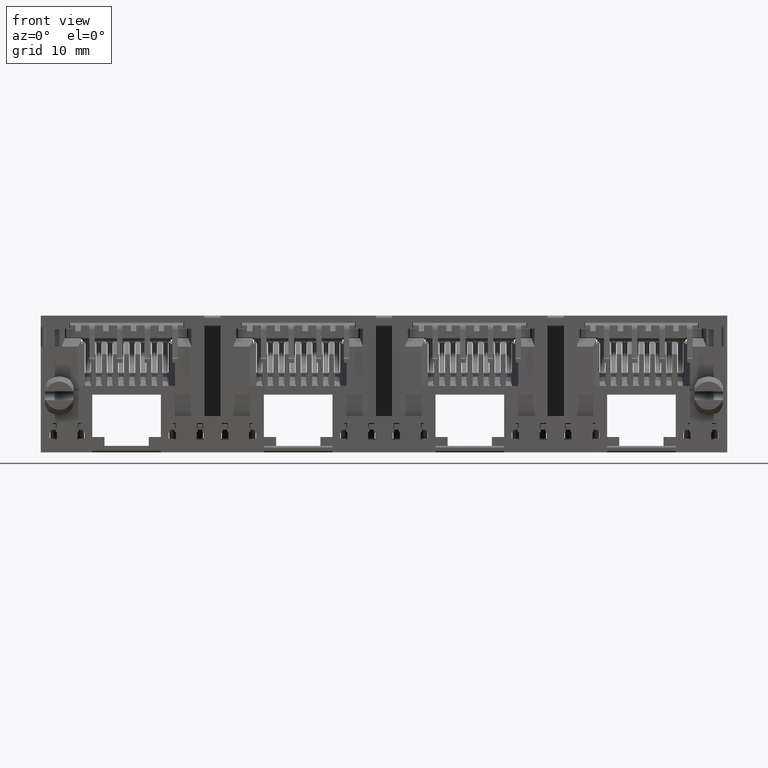
[diagram: clean part render]
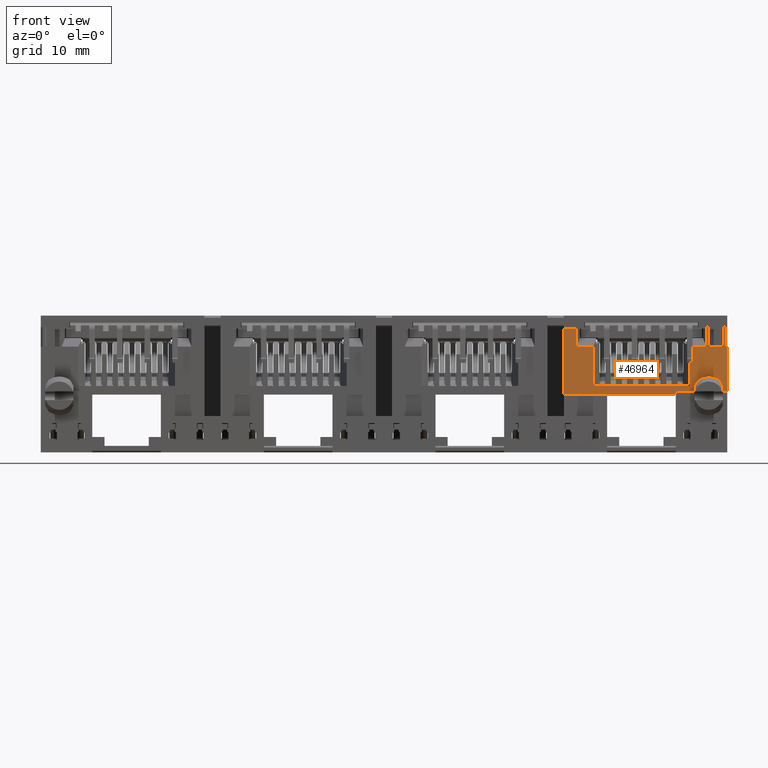
[diagram: same view with one face highlighted and labeled with its STEP entity id]
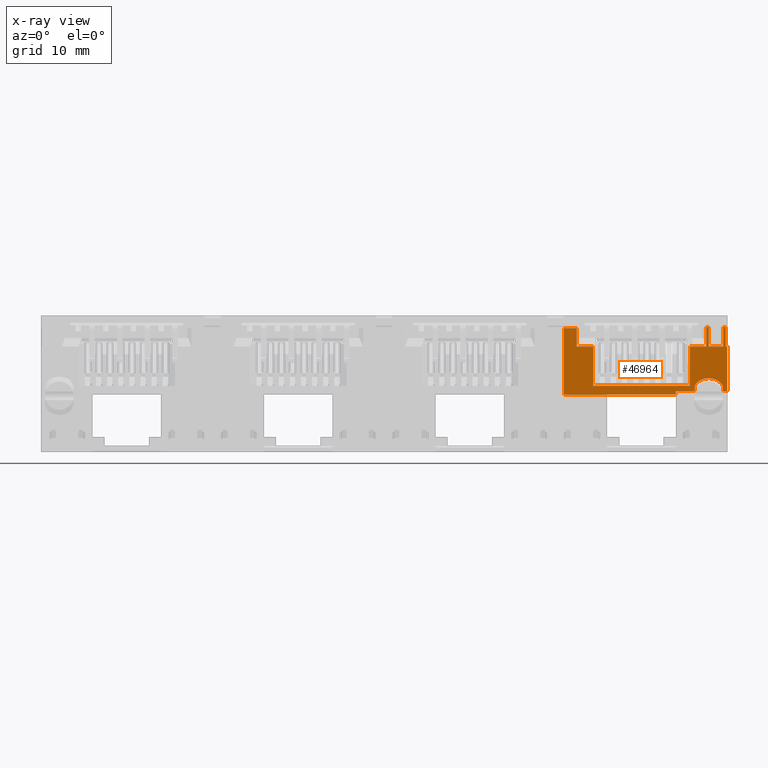
[diagram: x-ray of the same camera — body ghosted, the highlighted face saturated]
A machine part, front view. The second image highlights one B-rep face of the part: STEP entity #46964.
The next image is the same camera in x-ray: the body ghosted, the highlighted face saturated — about 0% of this face is hidden behind the body in this view.
In plain terms, the highlighted planar face has unit normal (0, 1, 0).
Its self-contained STEP definition (entity closure, byte-faithful):
#419 = VERTEX_POINT ( 'NONE', #39764 ) ;
#1283 = ORIENTED_EDGE ( 'NONE', *, *, #9608, .F. ) ;
#1754 = CARTESIAN_POINT ( 'NONE',  ( 31.05079481963474900, -6.500000000000001800, -0.06477412760717109200 ) ) ;
#2093 = B_SPLINE_CURVE_WITH_KNOTS ( 'NONE', 3,
 ( #70383, #32697, #38119, #48844 ),
 .UNSPECIFIED., .F., .F.,
 ( 4, 4 ),
 ( 0.0000000000000000000, 1.000000000000000000 ),
 .UNSPECIFIED. ) ;
#2249 = EDGE_CURVE ( 'NONE', #61274, #5122, #36587, .T. ) ;
#2575 = CARTESIAN_POINT ( 'NONE',  ( 31.50000000000000000, -6.500000000000000900, -0.6500000000000003600 ) ) ;
#3038 = CARTESIAN_POINT ( 'NONE',  ( 31.28333333333333100, -6.500000000000000900, 5.250000000000000000 ) ) ;
#3507 = CARTESIAN_POINT ( 'NONE',  ( 31.15000000000000200, -6.500000000000000900, 5.250000000000000900 ) ) ;
#3775 = CARTESIAN_POINT ( 'NONE',  ( 19.18000000000000000, -6.500000000000246000, 3.450000000000215100 ) ) ;
#4224 = ORIENTED_EDGE ( 'NONE', *, *, #61910, .F. ) ;
#4317 = EDGE_CURVE ( 'NONE', #45233, #20883, #52501, .T. ) ;
#4391 = ORIENTED_EDGE ( 'NONE', *, *, #22048, .F. ) ;
#4836 = CARTESIAN_POINT ( 'NONE',  ( 23.34999999999999800, -6.500000000000000900, -0.9500000000000000700 ) ) ;
#5113 = CARTESIAN_POINT ( 'NONE',  ( 28.49999999999999600, -6.500000000000000900, -0.3166666666663324200 ) ) ;
#5122 = VERTEX_POINT ( 'NONE', #67496 ) ;
#5339 = CARTESIAN_POINT ( 'NONE',  ( 28.49999999999999600, -6.500000000000000900, -0.4833333333331659200 ) ) ;
#5540 = CARTESIAN_POINT ( 'NONE',  ( 26.77500000000000200, -6.500000000000000900, -0.8500000000000002000 ) ) ;
#5964 = VERTEX_POINT ( 'NONE', #11994 ) ;
#6111 = ORIENTED_EDGE ( 'NONE', *, *, #22587, .F. ) ;
#6421 = ORIENTED_EDGE ( 'NONE', *, *, #24636, .F. ) ;
#6668 = VERTEX_POINT ( 'NONE', #37493 ) ;
#6730 = B_SPLINE_CURVE_WITH_KNOTS ( 'NONE', 3,
 ( #12764, #40261, #7808, #45730 ),
 .UNSPECIFIED., .F., .F.,
 ( 4, 4 ),
 ( 0.0000000000000000000, 1.000000000000000000 ),
 .UNSPECIFIED. ) ;
#7363 = B_SPLINE_CURVE_WITH_KNOTS ( 'NONE', 3,
 ( #30772, #25537, #9187, #3775 ),
 .UNSPECIFIED., .F., .F.,
 ( 4, 4 ),
 ( 0.0000000000000000000, 1.000000000000000000 ),
 .UNSPECIFIED. ) ;
#7478 = CARTESIAN_POINT ( 'NONE',  ( 31.35000000000000100, -6.500000000000000000, 3.449999999999999700 ) ) ;
#7680 = CARTESIAN_POINT ( 'NONE',  ( 26.77500000000000200, -6.499999999999999100, -0.9499999999999998400 ) ) ;
#7808 = CARTESIAN_POINT ( 'NONE',  ( 28.52460259018153400, -6.500000000000000900, -0.1073870638027514100 ) ) ;
#7974 = ORIENTED_EDGE ( 'NONE', *, *, #15056, .T. ) ;
#8122 = CARTESIAN_POINT ( 'NONE',  ( 17.67500000000000100, -6.500000000000000900, 5.119999999999999200 ) ) ;
#8324 = CARTESIAN_POINT ( 'NONE',  ( 19.51420419375133600, -6.500000245400430600, -0.1499999598809001200 ) ) ;
#8636 = CARTESIAN_POINT ( 'NONE',  ( 29.80000000000013900, -6.500000000000000900, 0.5499999999999719600 ) ) ;
#8778 = CARTESIAN_POINT ( 'NONE',  ( 31.14999999999801300, -6.500000000001988600, 4.649999999999999500 ) ) ;
#8841 = CARTESIAN_POINT ( 'NONE',  ( 30.26555173776925000, -6.500000000000001800, 0.4983793825669424700 ) ) ;
#8879 = CARTESIAN_POINT ( 'NONE',  ( 16.50000000000000000, -6.500000000000000900, 5.119999999999999200 ) ) ;
#8986 = CARTESIAN_POINT ( 'NONE',  ( 29.33444826223069400, -6.500000000000001800, 0.4983793825669293700 ) ) ;
#9187 = CARTESIAN_POINT ( 'NONE',  ( 18.67833333333333100, -6.500000000000246900, 3.450000000000214200 ) ) ;
#9218 = CARTESIAN_POINT ( 'NONE',  ( 28.49999999999999600, -6.500000000000000900, -0.6500000000000001300 ) ) ;
#9544 = VERTEX_POINT ( 'NONE', #34579 ) ;
#9608 = EDGE_CURVE ( 'NONE', #5122, #9544, #6730, .T. ) ;
#9613 = CARTESIAN_POINT ( 'NONE',  ( 16.20000000000000300, -6.500000000000000900, -1.074000000000000100 ) ) ;
#9868 = CARTESIAN_POINT ( 'NONE',  ( 31.50000000000000000, -6.500000000000000900, -0.6500000000000003600 ) ) ;
#10017 = CARTESIAN_POINT ( 'NONE',  ( 29.57499999999999900, -6.500000000000000900, 5.163333333333332200 ) ) ;
#10426 = EDGE_CURVE ( 'NONE', #30458, #29005, #39678, .T. ) ;
#10575 = ORIENTED_EDGE ( 'NONE', *, *, #10426, .T. ) ;
#10597 = CARTESIAN_POINT ( 'NONE',  ( 28.07000000000103100, -6.499999999999378300, 1.050000002014333600 ) ) ;
#10626 = CARTESIAN_POINT ( 'NONE',  ( 17.67500000000000100, -6.500000000000246900, 3.450000000000216000 ) ) ;
#10804 = CARTESIAN_POINT ( 'NONE',  ( 16.50000000000000000, -6.500000000000000900, 5.119999999999999200 ) ) ;
#10995 = CARTESIAN_POINT ( 'NONE',  ( 31.44999999999999900, -6.500000000000000900, 3.449999999999999700 ) ) ;
#11218 = VERTEX_POINT ( 'NONE', #24218 ) ;
#11230 = CARTESIAN_POINT ( 'NONE',  ( 31.40000000000000600, -6.500000000000000900, 3.449999999999999700 ) ) ;
#11503 = CARTESIAN_POINT ( 'NONE',  ( 29.80000000000000100, -6.500000000000000900, 4.049999999999999800 ) ) ;
#11970 = CARTESIAN_POINT ( 'NONE',  ( 29.79999999999999700, -6.500000000000000900, 3.449999999999999300 ) ) ;
#11994 = CARTESIAN_POINT ( 'NONE',  ( 28.06999999999999700, -6.500000000000000900, 3.449999999999999300 ) ) ;
#12109 = CARTESIAN_POINT ( 'NONE',  ( 16.89166666666666900, -6.500000000000000900, 5.119999999999999200 ) ) ;
#12134 = ORIENTED_EDGE ( 'NONE', *, *, #18839, .F. ) ;
#12764 = CARTESIAN_POINT ( 'NONE',  ( 28.57380777055059400, -6.500000000000000900, -0.02216119141224611200 ) ) ;
#13102 = ORIENTED_EDGE ( 'NONE', *, *, #33493, .F. ) ;
#13198 = CARTESIAN_POINT ( 'NONE',  ( 29.57499999999999900, -6.500000000000000900, 3.449999999999999300 ) ) ;
#13436 = EDGE_CURVE ( 'NONE', #57082, #11218, #18339, .T. ) ;
#14308 = CARTESIAN_POINT ( 'NONE',  ( 16.50000000000000000, -6.500000000000000900, 1.073333333333333300 ) ) ;
#14391 = ORIENTED_EDGE ( 'NONE', *, *, #32857, .F. ) ;
#14432 = VERTEX_POINT ( 'NONE', #66376 ) ;
#14434 = CARTESIAN_POINT ( 'NONE',  ( 31.35000000000000100, -6.500000000000000000, 3.449999999999999700 ) ) ;
#14595 = EDGE_LOOP ( 'NONE', ( #23241, #40059, #20599, #43002, #7974, #4391, #6111, #1283, #44000, #56017, #30679, #6421, #26405, #10575, #24874, #57555, #13102, #37024, #18992, #12134, #56809, #14391, #44181, #55383, #42295, #4224, #66008, #38758 ) ) ;
#14666 = CARTESIAN_POINT ( 'NONE',  ( 26.77499999999999900, -6.500000000000000900, -0.6500000000000001300 ) ) ;
#15056 = EDGE_CURVE ( 'NONE', #45233, #57091, #63949, .T. ) ;
#15985 = CARTESIAN_POINT ( 'NONE',  ( 28.49999999999999600, -6.500000000000000900, -0.6500000000000001300 ) ) ;
#16304 = EDGE_CURVE ( 'NONE', #20883, #63392, #61285, .T. ) ;
#16535 = CARTESIAN_POINT ( 'NONE',  ( 17.67500000000090000, -6.500000000000386400, 4.563333333333331700 ) ) ;
#16606 = CARTESIAN_POINT ( 'NONE',  ( 30.70000000000000300, -6.500000000000000900, 3.449999999999999700 ) ) ;
#16617 = CARTESIAN_POINT ( 'NONE',  ( 19.92500000000000100, -6.500000000000000900, -0.9500000000000000700 ) ) ;
#17501 = CARTESIAN_POINT ( 'NONE',  ( 28.57166666666666500, -6.500000000000246900, 3.450000000000214700 ) ) ;
#17560 = CARTESIAN_POINT ( 'NONE',  ( 17.28333333333333100, -6.500000000000000900, 5.119999999999999200 ) ) ;
#17842 = CARTESIAN_POINT ( 'NONE',  ( 31.07539740981844300, -6.500000000000001800, -0.1073870638027169500 ) ) ;
#18187 = B_SPLINE_CURVE_WITH_KNOTS ( 'NONE', 3,
 ( #65116, #10597, #59457, #54722 ),
 .UNSPECIFIED., .F., .F.,
 ( 4, 4 ),
 ( 0.0000000000000000000, 1.000000000000000000 ),
 .UNSPECIFIED. ) ;
#18339 = B_SPLINE_CURVE_WITH_KNOTS ( 'NONE', 3,
 ( #56894, #52146, #24384, #62307 ),
 .UNSPECIFIED., .F., .F.,
 ( 4, 4 ),
 ( 0.0000000000000000000, 1.000000000000000000 ),
 .UNSPECIFIED. ) ;
#18518 = CARTESIAN_POINT ( 'NONE',  ( 24.85753752708000500, -6.499998047878629700, -0.1500129259178237800 ) ) ;
#18729 = CARTESIAN_POINT ( 'NONE',  ( 26.77499999999999900, -6.500000000000000900, -0.6500000000000001300 ) ) ;
#18839 = EDGE_CURVE ( 'NONE', #11218, #14432, #23558, .T. ) ;
#18891 = CARTESIAN_POINT ( 'NONE',  ( 29.07333333333333400, -6.500000000000246900, 3.450000000000214700 ) ) ;
#18992 = ORIENTED_EDGE ( 'NONE', *, *, #40862, .F. ) ;
#19547 = EDGE_CURVE ( 'NONE', #62082, #59518, #35661, .T. ) ;
#20115 = CARTESIAN_POINT ( 'NONE',  ( 31.09999999999999800, -6.500000000000000900, -0.1499999999994998100 ) ) ;
#20435 = CARTESIAN_POINT ( 'NONE',  ( 31.50000000000000000, -6.500000000000000900, 2.083333333333333500 ) ) ;
#20515 = DIRECTION ( 'NONE',  ( 0.0000000000000000000, 1.000000000000000000, 0.0000000000000000000 ) ) ;
#20599 = ORIENTED_EDGE ( 'NONE', *, *, #16304, .F. ) ;
#20705 = CARTESIAN_POINT ( 'NONE',  ( 30.68756163978670100, -6.500000000000001800, 0.3014627144237085900 ) ) ;
#20883 = VERTEX_POINT ( 'NONE', #46407 ) ;
#20926 = EDGE_CURVE ( 'NONE', #30458, #43813, #42181, .T. ) ;
#20934 = CARTESIAN_POINT ( 'NONE',  ( 31.15000000000000600, -6.500000000000000900, 3.449999999999999300 ) ) ;
#21962 = CARTESIAN_POINT ( 'NONE',  ( 29.79999999999999700, -6.500000000000000900, 5.250000000000000900 ) ) ;
#22048 = EDGE_CURVE ( 'NONE', #62718, #57091, #49120, .T. ) ;
#22552 = VERTEX_POINT ( 'NONE', #63897 ) ;
#22587 = EDGE_CURVE ( 'NONE', #9544, #62718, #32161, .T. ) ;
#22628 = VERTEX_POINT ( 'NONE', #64361 ) ;
#23080 = EDGE_CURVE ( 'NONE', #27309, #40654, #7363, .T. ) ;
#23241 = ORIENTED_EDGE ( 'NONE', *, *, #30267, .F. ) ;
#23558 = B_SPLINE_CURVE_WITH_KNOTS ( 'NONE', 3,
 ( #21962, #27853, #11503, #11970 ),
 .UNSPECIFIED., .F., .F.,
 ( 4, 4 ),
 ( 0.0000000000000000000, 1.000000000000000000 ),
 .UNSPECIFIED. ) ;
#24218 = CARTESIAN_POINT ( 'NONE',  ( 29.79999999999999700, -6.500000000000000900, 5.250000000000000900 ) ) ;
#24384 = CARTESIAN_POINT ( 'NONE',  ( 29.72500000000000100, -6.500000000000000900, 5.250000000000000000 ) ) ;
#24636 = EDGE_CURVE ( 'NONE', #43813, #59839, #33848, .T. ) ;
#24666 = B_SPLINE_CURVE_WITH_KNOTS ( 'NONE', 3,
 ( #25354, #46487, #8778, #62828 ),
 .UNSPECIFIED., .F., .F.,
 ( 4, 4 ),
 ( 0.0000000000000000000, 1.000000000000000000 ),
 .UNSPECIFIED. ) ;
#24754 = EDGE_CURVE ( 'NONE', #419, #5964, #18187, .T. ) ;
#24874 = ORIENTED_EDGE ( 'NONE', *, *, #29387, .F. ) ;
#24936 = B_SPLINE_CURVE_WITH_KNOTS ( 'NONE', 3,
 ( #34771, #17501, #18891, #13198 ),
 .UNSPECIFIED., .F., .F.,
 ( 4, 4 ),
 ( 0.0000000000000000000, 1.000000000000000000 ),
 .UNSPECIFIED. ) ;
#25326 = CARTESIAN_POINT ( 'NONE',  ( 28.91243836021319100, -6.500000000000001800, 0.3014627144236470300 ) ) ;
#25354 = CARTESIAN_POINT ( 'NONE',  ( 31.15000000000000600, -6.500000000000000900, 3.449999999999999300 ) ) ;
#25537 = CARTESIAN_POINT ( 'NONE',  ( 18.17666666666666200, -6.500000000000246900, 3.450000000000214200 ) ) ;
#25570 = EDGE_CURVE ( 'NONE', #53103, #22552, #24666, .T. ) ;
#25660 = CARTESIAN_POINT ( 'NONE',  ( 30.03284572767898200, -6.500000000000000900, 0.5500000000000001600 ) ) ;
#25914 = B_SPLINE_CURVE_WITH_KNOTS ( 'NONE', 3,
 ( #61903, #44875, #62863, #46758 ),
 .UNSPECIFIED., .F., .F.,
 ( 4, 4 ),
 ( 0.0000000000000000000, 1.000000000000000000 ),
 .UNSPECIFIED. ) ;
#26405 = ORIENTED_EDGE ( 'NONE', *, *, #20926, .F. ) ;
#27309 = VERTEX_POINT ( 'NONE', #64467 ) ;
#27853 = CARTESIAN_POINT ( 'NONE',  ( 29.80000000000000100, -6.500000000000000900, 4.650000000000000400 ) ) ;
#28733 = CARTESIAN_POINT ( 'NONE',  ( 31.09999999999999800, -6.500000000000000900, -0.1499999999994998100 ) ) ;
#29005 = VERTEX_POINT ( 'NONE', #29539 ) ;
#29387 = EDGE_CURVE ( 'NONE', #59518, #29005, #32876, .T. ) ;
#29402 = CARTESIAN_POINT ( 'NONE',  ( 22.14333349813566800, -6.500000369471119500, -0.1499992278241341600 ) ) ;
#29539 = CARTESIAN_POINT ( 'NONE',  ( 31.50000000000000000, -6.500000000000000900, 3.449999999999999700 ) ) ;
#29886 = CARTESIAN_POINT ( 'NONE',  ( 27.48666666667337900, -6.499995620450055100, -0.1500272484730196300 ) ) ;
#30106 = CARTESIAN_POINT ( 'NONE',  ( 31.34999999999999400, -6.500000000000000900, 5.250000000000000900 ) ) ;
#30267 = EDGE_CURVE ( 'NONE', #60223, #27309, #49353, .T. ) ;
#30458 = VERTEX_POINT ( 'NONE', #2575 ) ;
#30679 = ORIENTED_EDGE ( 'NONE', *, *, #46255, .F. ) ;
#30772 = CARTESIAN_POINT ( 'NONE',  ( 17.67500000000000100, -6.500000000000246900, 3.450000000000216000 ) ) ;
#30856 = CARTESIAN_POINT ( 'NONE',  ( 31.50000000000000000, -6.500000000000000900, 0.7166666666666662300 ) ) ;
#31040 = CARTESIAN_POINT ( 'NONE',  ( 27.34999999999999800, -6.500000000000000900, -0.6500000000000001300 ) ) ;
#31141 = B_SPLINE_CURVE_WITH_KNOTS ( 'NONE', 3,
 ( #28733, #17842, #1754, #51279 ),
 .UNSPECIFIED., .F., .F.,
 ( 4, 4 ),
 ( 0.0000000000000000000, 1.000000000000000000 ),
 .UNSPECIFIED. ) ;
#31391 = CARTESIAN_POINT ( 'NONE',  ( 31.09999999999999800, -6.500000000000000900, -0.1499999999994998100 ) ) ;
#31445 = CARTESIAN_POINT ( 'NONE',  ( 31.36666666666666700, -6.500000000000000900, -0.6500000000000001300 ) ) ;
#31596 = CARTESIAN_POINT ( 'NONE',  ( 30.87661230737299100, -6.500000000000000000, 0.1562848223000073400 ) ) ;
#32161 = B_SPLINE_CURVE_WITH_KNOTS ( 'NONE', 3,
 ( #48970, #5113, #5339, #43496 ),
 .UNSPECIFIED., .F., .F.,
 ( 4, 4 ),
 ( 0.0000000000000000000, 1.000000000000000000 ),
 .UNSPECIFIED. ) ;
#32697 = CARTESIAN_POINT ( 'NONE',  ( 29.57499999999910400, -6.500000000000384600, 4.006666666666665000 ) ) ;
#32857 = EDGE_CURVE ( 'NONE', #67060, #57082, #44588, .T. ) ;
#32876 = B_SPLINE_CURVE_WITH_KNOTS ( 'NONE', 3,
 ( #7478, #11230, #10995, #60553 ),
 .UNSPECIFIED., .F., .F.,
 ( 4, 4 ),
 ( 0.0000000000000000000, 1.000000000000000000 ),
 .UNSPECIFIED. ) ;
#33493 = EDGE_CURVE ( 'NONE', #22552, #62082, #66662, .T. ) ;
#33848 = B_SPLINE_CURVE_WITH_KNOTS ( 'NONE', 3,
 ( #42389, #53554, #64416, #20115 ),
 .UNSPECIFIED., .F., .F.,
 ( 4, 4 ),
 ( 0.0000000000000000000, 1.000000000000000000 ),
 .UNSPECIFIED. ) ;
#34579 = CARTESIAN_POINT ( 'NONE',  ( 28.49999999999999600, -6.500000000000000900, -0.1499999999994998100 ) ) ;
#34771 = CARTESIAN_POINT ( 'NONE',  ( 28.06999999999999700, -6.500000000000000900, 3.449999999999999300 ) ) ;
#34867 = CARTESIAN_POINT ( 'NONE',  ( 28.06999999999999700, -6.500000000000000900, -0.1499999969784994200 ) ) ;
#35661 = B_SPLINE_CURVE_WITH_KNOTS ( 'NONE', 3,
 ( #30106, #46728, #46256, #14434 ),
 .UNSPECIFIED., .F., .F.,
 ( 4, 4 ),
 ( 0.0000000000000000000, 1.000000000000000000 ),
 .UNSPECIFIED. ) ;
#36077 = B_SPLINE_CURVE_WITH_KNOTS ( 'NONE', 3,
 ( #62125, #8324, #29402, #18518, #29886, #41018, #34867 ),
 .UNSPECIFIED., .F., .F.,
 ( 4, 1, 1, 1, 4 ),
 ( 0.0000000000000000000, 0.1127798179132812600, 0.8872202376978167700, 0.9159293685953483500, 1.000000000000000000 ),
 .UNSPECIFIED. ) ;
#36587 = B_SPLINE_CURVE_WITH_KNOTS ( 'NONE', 3,
 ( #52162, #57613, #8986, #25326, #52393, #58098 ),
 .UNSPECIFIED., .F., .F.,
 ( 4, 2, 4 ),
 ( 0.0000000000000000000, 0.5000000000000000000, 1.000000000000000000 ),
 .UNSPECIFIED. ) ;
#37024 = ORIENTED_EDGE ( 'NONE', *, *, #25570, .F. ) ;
#37234 = B_SPLINE_CURVE_WITH_KNOTS ( 'NONE', 3,
 ( #57706, #31596, #20705, #8841, #25660, #46802 ),
 .UNSPECIFIED., .F., .F.,
 ( 4, 2, 4 ),
 ( 0.0000000000000000000, 0.5000000000000000000, 1.000000000000000000 ),
 .UNSPECIFIED. ) ;
#37493 = CARTESIAN_POINT ( 'NONE',  ( 31.02619222944935700, -6.500000000000000900, -0.02216119141277075900 ) ) ;
#37995 = CARTESIAN_POINT ( 'NONE',  ( 26.77500000000000200, -6.499999999999999100, -0.9499999999999998400 ) ) ;
#38119 = CARTESIAN_POINT ( 'NONE',  ( 29.57499999999910400, -6.500000000000384600, 4.563333333333331700 ) ) ;
#38758 = ORIENTED_EDGE ( 'NONE', *, *, #23080, .F. ) ;
#39614 = B_SPLINE_CURVE_WITH_KNOTS ( 'NONE', 3,
 ( #55520, #17560, #12109, #50516 ),
 .UNSPECIFIED., .F., .F.,
 ( 4, 4 ),
 ( 0.0000000000000000000, 1.000000000000000000 ),
 .UNSPECIFIED. ) ;
#39678 = B_SPLINE_CURVE_WITH_KNOTS ( 'NONE', 3,
 ( #63104, #30856, #20435, #58393 ),
 .UNSPECIFIED., .F., .F.,
 ( 4, 4 ),
 ( 0.0000000000000000000, 1.000000000000000000 ),
 .UNSPECIFIED. ) ;
#39764 = CARTESIAN_POINT ( 'NONE',  ( 28.06999999999999700, -6.500000000000000900, -0.1499999969784994200 ) ) ;
#40059 = ORIENTED_EDGE ( 'NONE', *, *, #55013, .T. ) ;
#40261 = CARTESIAN_POINT ( 'NONE',  ( 28.54920518036521300, -6.500000000000000900, -0.06477412760723906500 ) ) ;
#40654 = VERTEX_POINT ( 'NONE', #68118 ) ;
#40862 = EDGE_CURVE ( 'NONE', #14432, #53103, #59105, .T. ) ;
#40935 = CARTESIAN_POINT ( 'NONE',  ( 31.21666666666666900, -6.500000000000000900, 5.250000000000000000 ) ) ;
#41018 = CARTESIAN_POINT ( 'NONE',  ( 27.82087069563489500, -6.499998945155524200, -0.1500076317152775900 ) ) ;
#41111 = CARTESIAN_POINT ( 'NONE',  ( 16.50000000000000000, -6.500000000000000900, 3.096666666666666700 ) ) ;
#41865 = CARTESIAN_POINT ( 'NONE',  ( 31.10000000000000100, -6.500000000000000900, -0.6499999999999995800 ) ) ;
#42181 = B_SPLINE_CURVE_WITH_KNOTS ( 'NONE', 3,
 ( #9868, #31445, #42349, #41865 ),
 .UNSPECIFIED., .F., .F.,
 ( 4, 4 ),
 ( 0.0000000000000000000, 1.000000000000000000 ),
 .UNSPECIFIED. ) ;
#42295 = ORIENTED_EDGE ( 'NONE', *, *, #24754, .F. ) ;
#42349 = CARTESIAN_POINT ( 'NONE',  ( 31.23333333333333400, -6.500000000000000900, -0.6500000000000001300 ) ) ;
#42389 = CARTESIAN_POINT ( 'NONE',  ( 31.10000000000000100, -6.500000000000000900, -0.6499999999999995800 ) ) ;
#42973 = CARTESIAN_POINT ( 'NONE',  ( 26.77500000000000200, -6.499999999999999100, -0.9499999999999998400 ) ) ;
#43002 = ORIENTED_EDGE ( 'NONE', *, *, #4317, .F. ) ;
#43496 = CARTESIAN_POINT ( 'NONE',  ( 28.49999999999999600, -6.500000000000000900, -0.6500000000000001300 ) ) ;
#43813 = VERTEX_POINT ( 'NONE', #70003 ) ;
#44000 = ORIENTED_EDGE ( 'NONE', *, *, #2249, .F. ) ;
#44181 = ORIENTED_EDGE ( 'NONE', *, *, #66825, .F. ) ;
#44588 = B_SPLINE_CURVE_WITH_KNOTS ( 'NONE', 3,
 ( #64068, #10017, #47985, #70224 ),
 .UNSPECIFIED., .F., .F.,
 ( 4, 4 ),
 ( 0.0000000000000000000, 1.000000000000000000 ),
 .UNSPECIFIED. ) ;
#44875 = CARTESIAN_POINT ( 'NONE',  ( 19.17999999999896200, -6.500000000000000900, 1.050000002014333000 ) ) ;
#45233 = VERTEX_POINT ( 'NONE', #7680 ) ;
#45730 = CARTESIAN_POINT ( 'NONE',  ( 28.49999999999999600, -6.500000000000000900, -0.1499999999994998100 ) ) ;
#46255 = EDGE_CURVE ( 'NONE', #59839, #6668, #31141, .T. ) ;
#46256 = CARTESIAN_POINT ( 'NONE',  ( 31.35000000000297900, -6.500000000000997400, 4.049999999999999800 ) ) ;
#46353 = EDGE_CURVE ( 'NONE', #64896, #40654, #25914, .T. ) ;
#46407 = CARTESIAN_POINT ( 'NONE',  ( 16.50000000000000000, -6.500000000000000900, -0.9500000000000002900 ) ) ;
#46487 = CARTESIAN_POINT ( 'NONE',  ( 31.14999999999801300, -6.500000000001988600, 4.049999999999998900 ) ) ;
#46634 = CARTESIAN_POINT ( 'NONE',  ( 31.34999999999999400, -6.500000000000000900, 5.250000000000000900 ) ) ;
#46728 = CARTESIAN_POINT ( 'NONE',  ( 31.35000000000297900, -6.500000000000997400, 4.650000000000000400 ) ) ;
#46758 = CARTESIAN_POINT ( 'NONE',  ( 19.18000000000000000, -6.500000000000246000, 3.450000000000215100 ) ) ;
#46802 = CARTESIAN_POINT ( 'NONE',  ( 29.80000000000013900, -6.500000000000000900, 0.5499999999999719600 ) ) ;
#46964 = ADVANCED_FACE ( 'NONE', ( #50706 ), #52787, .F. ) ;
#47415 = EDGE_CURVE ( 'NONE', #6668, #61274, #37234, .T. ) ;
#47679 = CARTESIAN_POINT ( 'NONE',  ( 31.34999999999999400, -6.500000000000000900, 5.250000000000000900 ) ) ;
#47985 = CARTESIAN_POINT ( 'NONE',  ( 29.57499999999999900, -6.500000000000000900, 5.206666666666667000 ) ) ;
#48701 = CARTESIAN_POINT ( 'NONE',  ( 16.50000000000000000, -6.500000000000000900, -0.9500000000000002900 ) ) ;
#48720 = CARTESIAN_POINT ( 'NONE',  ( 26.77500000000000200, -6.500000000000000900, -0.7500000000000004400 ) ) ;
#48844 = CARTESIAN_POINT ( 'NONE',  ( 29.57499999999999600, -6.500000000000000900, 5.119999999999999200 ) ) ;
#48970 = CARTESIAN_POINT ( 'NONE',  ( 28.49999999999999600, -6.500000000000000900, -0.1499999999994998100 ) ) ;
#49120 = B_SPLINE_CURVE_WITH_KNOTS ( 'NONE', 3,
 ( #9218, #51936, #31040, #14666 ),
 .UNSPECIFIED., .F., .F.,
 ( 4, 4 ),
 ( 0.0000000000000000000, 1.000000000000000000 ),
 .UNSPECIFIED. ) ;
#49353 = B_SPLINE_CURVE_WITH_KNOTS ( 'NONE', 3,
 ( #64676, #16535, #59945, #10626 ),
 .UNSPECIFIED., .F., .F.,
 ( 4, 4 ),
 ( 0.0000000000000000000, 1.000000000000000000 ),
 .UNSPECIFIED. ) ;
#50439 = EDGE_CURVE ( 'NONE', #5964, #22628, #24936, .T. ) ;
#50466 = CARTESIAN_POINT ( 'NONE',  ( 31.15000000000000600, -6.500000000000000900, 3.449999999999999300 ) ) ;
#50516 = CARTESIAN_POINT ( 'NONE',  ( 16.50000000000000000, -6.500000000000000900, 5.119999999999999200 ) ) ;
#50706 = FACE_OUTER_BOUND ( 'NONE', #14595, .T. ) ;
#51279 = CARTESIAN_POINT ( 'NONE',  ( 31.02619222944935700, -6.500000000000000900, -0.02216119141277075900 ) ) ;
#51936 = CARTESIAN_POINT ( 'NONE',  ( 27.92499999999999700, -6.500000000000000900, -0.6500000000000001300 ) ) ;
#52146 = CARTESIAN_POINT ( 'NONE',  ( 29.65000000000000200, -6.500000000000000900, 5.250000000000000000 ) ) ;
#52162 = CARTESIAN_POINT ( 'NONE',  ( 29.80000000000013900, -6.500000000000000900, 0.5499999999999719600 ) ) ;
#52393 = CARTESIAN_POINT ( 'NONE',  ( 28.72338769262690100, -6.500000000000000900, 0.1562848222999108600 ) ) ;
#52501 = B_SPLINE_CURVE_WITH_KNOTS ( 'NONE', 3,
 ( #42973, #4836, #16617, #48701 ),
 .UNSPECIFIED., .F., .F.,
 ( 4, 4 ),
 ( 0.0000000000000000000, 1.000000000000000000 ),
 .UNSPECIFIED. ) ;
#52787 = PLANE ( 'NONE',  #58144 ) ;
#53103 = VERTEX_POINT ( 'NONE', #50466 ) ;
#53554 = CARTESIAN_POINT ( 'NONE',  ( 31.09999999999999800, -6.500000000000000900, -0.4833333333331654700 ) ) ;
#53895 = CARTESIAN_POINT ( 'NONE',  ( 29.79999999999999700, -6.500000000000000900, 3.449999999999999300 ) ) ;
#54722 = CARTESIAN_POINT ( 'NONE',  ( 28.06999999999999700, -6.500000000000000900, 3.449999999999999300 ) ) ;
#55013 = EDGE_CURVE ( 'NONE', #60223, #63392, #39614, .T. ) ;
#55383 = ORIENTED_EDGE ( 'NONE', *, *, #50439, .F. ) ;
#55520 = CARTESIAN_POINT ( 'NONE',  ( 17.67500000000000100, -6.500000000000000900, 5.119999999999999200 ) ) ;
#56017 = ORIENTED_EDGE ( 'NONE', *, *, #47415, .F. ) ;
#56809 = ORIENTED_EDGE ( 'NONE', *, *, #13436, .F. ) ;
#56894 = CARTESIAN_POINT ( 'NONE',  ( 29.57499999999999900, -6.500000000000000900, 5.250000000000000900 ) ) ;
#57082 = VERTEX_POINT ( 'NONE', #62112 ) ;
#57091 = VERTEX_POINT ( 'NONE', #18729 ) ;
#57555 = ORIENTED_EDGE ( 'NONE', *, *, #19547, .F. ) ;
#57613 = CARTESIAN_POINT ( 'NONE',  ( 29.56715427232099100, -6.500000000000000000, 0.5500000000000000400 ) ) ;
#57706 = CARTESIAN_POINT ( 'NONE',  ( 31.02619222944935700, -6.500000000000000900, -0.02216119141277075900 ) ) ;
#58098 = CARTESIAN_POINT ( 'NONE',  ( 28.57380777055059400, -6.500000000000000900, -0.02216119141224611200 ) ) ;
#58144 = AXIS2_PLACEMENT_3D ( 'NONE', #9613, #20515, #62953 ) ;
#58223 = CARTESIAN_POINT ( 'NONE',  ( 16.50000000000000000, -6.500000000000000900, -0.9500000000000002900 ) ) ;
#58393 = CARTESIAN_POINT ( 'NONE',  ( 31.50000000000000000, -6.500000000000000900, 3.449999999999999700 ) ) ;
#59105 = B_SPLINE_CURVE_WITH_KNOTS ( 'NONE', 3,
 ( #53895, #59111, #16606, #20934 ),
 .UNSPECIFIED., .F., .F.,
 ( 4, 4 ),
 ( 0.0000000000000000000, 1.000000000000000000 ),
 .UNSPECIFIED. ) ;
#59111 = CARTESIAN_POINT ( 'NONE',  ( 30.25000000000000400, -6.500000000000000900, 3.449999999999999700 ) ) ;
#59383 = CARTESIAN_POINT ( 'NONE',  ( 19.17999999977308100, -6.500000000375849600, -0.1500002874263996500 ) ) ;
#59457 = CARTESIAN_POINT ( 'NONE',  ( 28.07000000000103100, -6.499999999999378300, 2.250000001007166400 ) ) ;
#59518 = VERTEX_POINT ( 'NONE', #59685 ) ;
#59685 = CARTESIAN_POINT ( 'NONE',  ( 31.35000000000000100, -6.500000000000000000, 3.449999999999999700 ) ) ;
#59839 = VERTEX_POINT ( 'NONE', #31391 ) ;
#59945 = CARTESIAN_POINT ( 'NONE',  ( 17.67500000000090000, -6.500000000000386400, 4.006666666666665000 ) ) ;
#60223 = VERTEX_POINT ( 'NONE', #8122 ) ;
#60553 = CARTESIAN_POINT ( 'NONE',  ( 31.50000000000000000, -6.500000000000000900, 3.449999999999999700 ) ) ;
#61274 = VERTEX_POINT ( 'NONE', #8636 ) ;
#61285 = B_SPLINE_CURVE_WITH_KNOTS ( 'NONE', 3,
 ( #58223, #14308, #41111, #8879 ),
 .UNSPECIFIED., .F., .F.,
 ( 4, 4 ),
 ( 0.0000000000000000000, 1.000000000000000000 ),
 .UNSPECIFIED. ) ;
#61903 = CARTESIAN_POINT ( 'NONE',  ( 19.17999999977308100, -6.500000000375849600, -0.1500002874263996500 ) ) ;
#61910 = EDGE_CURVE ( 'NONE', #64896, #419, #36077, .T. ) ;
#62082 = VERTEX_POINT ( 'NONE', #47679 ) ;
#62112 = CARTESIAN_POINT ( 'NONE',  ( 29.57499999999999900, -6.500000000000000900, 5.250000000000000900 ) ) ;
#62125 = CARTESIAN_POINT ( 'NONE',  ( 19.17999999977308100, -6.500000000375849600, -0.1500002874263996500 ) ) ;
#62307 = CARTESIAN_POINT ( 'NONE',  ( 29.79999999999999700, -6.500000000000000900, 5.250000000000000900 ) ) ;
#62718 = VERTEX_POINT ( 'NONE', #15985 ) ;
#62828 = CARTESIAN_POINT ( 'NONE',  ( 31.15000000000000200, -6.500000000000000900, 5.250000000000000900 ) ) ;
#62863 = CARTESIAN_POINT ( 'NONE',  ( 19.17999999999896200, -6.500000000000000900, 2.250000001007165900 ) ) ;
#62953 = DIRECTION ( 'NONE',  ( 0.0000000000000000000, 0.0000000000000000000, 1.000000000000000000 ) ) ;
#63104 = CARTESIAN_POINT ( 'NONE',  ( 31.50000000000000000, -6.500000000000000900, -0.6500000000000003600 ) ) ;
#63392 = VERTEX_POINT ( 'NONE', #10804 ) ;
#63897 = CARTESIAN_POINT ( 'NONE',  ( 31.15000000000000200, -6.500000000000000900, 5.250000000000000900 ) ) ;
#63949 = B_SPLINE_CURVE_WITH_KNOTS ( 'NONE', 3,
 ( #37995, #5540, #48720, #69813 ),
 .UNSPECIFIED., .F., .F.,
 ( 4, 4 ),
 ( 0.0000000000000000000, 1.000000000000000000 ),
 .UNSPECIFIED. ) ;
#64068 = CARTESIAN_POINT ( 'NONE',  ( 29.57499999999999600, -6.500000000000000900, 5.119999999999999200 ) ) ;
#64361 = CARTESIAN_POINT ( 'NONE',  ( 29.57499999999999900, -6.500000000000000900, 3.449999999999999300 ) ) ;
#64416 = CARTESIAN_POINT ( 'NONE',  ( 31.09999999999999800, -6.500000000000000900, -0.3166666666663322000 ) ) ;
#64467 = CARTESIAN_POINT ( 'NONE',  ( 17.67500000000000100, -6.500000000000246900, 3.450000000000216000 ) ) ;
#64676 = CARTESIAN_POINT ( 'NONE',  ( 17.67500000000000100, -6.500000000000000900, 5.119999999999999200 ) ) ;
#64896 = VERTEX_POINT ( 'NONE', #59383 ) ;
#65116 = CARTESIAN_POINT ( 'NONE',  ( 28.06999999999999700, -6.500000000000000900, -0.1499999969784994200 ) ) ;
#66008 = ORIENTED_EDGE ( 'NONE', *, *, #46353, .T. ) ;
#66376 = CARTESIAN_POINT ( 'NONE',  ( 29.79999999999999700, -6.500000000000000900, 3.449999999999999300 ) ) ;
#66662 = B_SPLINE_CURVE_WITH_KNOTS ( 'NONE', 3,
 ( #3507, #40935, #3038, #46634 ),
 .UNSPECIFIED., .F., .F.,
 ( 4, 4 ),
 ( 0.0000000000000000000, 1.000000000000000000 ),
 .UNSPECIFIED. ) ;
#66825 = EDGE_CURVE ( 'NONE', #22628, #67060, #2093, .T. ) ;
#67060 = VERTEX_POINT ( 'NONE', #68457 ) ;
#67496 = CARTESIAN_POINT ( 'NONE',  ( 28.57380777055059400, -6.500000000000000900, -0.02216119141224611200 ) ) ;
#68118 = CARTESIAN_POINT ( 'NONE',  ( 19.18000000000000000, -6.500000000000246000, 3.450000000000215100 ) ) ;
#68457 = CARTESIAN_POINT ( 'NONE',  ( 29.57499999999999600, -6.500000000000000900, 5.119999999999999200 ) ) ;
#69813 = CARTESIAN_POINT ( 'NONE',  ( 26.77499999999999900, -6.500000000000000900, -0.6500000000000001300 ) ) ;
#70003 = CARTESIAN_POINT ( 'NONE',  ( 31.10000000000000100, -6.500000000000000900, -0.6499999999999995800 ) ) ;
#70224 = CARTESIAN_POINT ( 'NONE',  ( 29.57499999999999900, -6.500000000000000900, 5.250000000000000900 ) ) ;
#70383 = CARTESIAN_POINT ( 'NONE',  ( 29.57499999999999900, -6.500000000000000900, 3.449999999999999300 ) ) ;